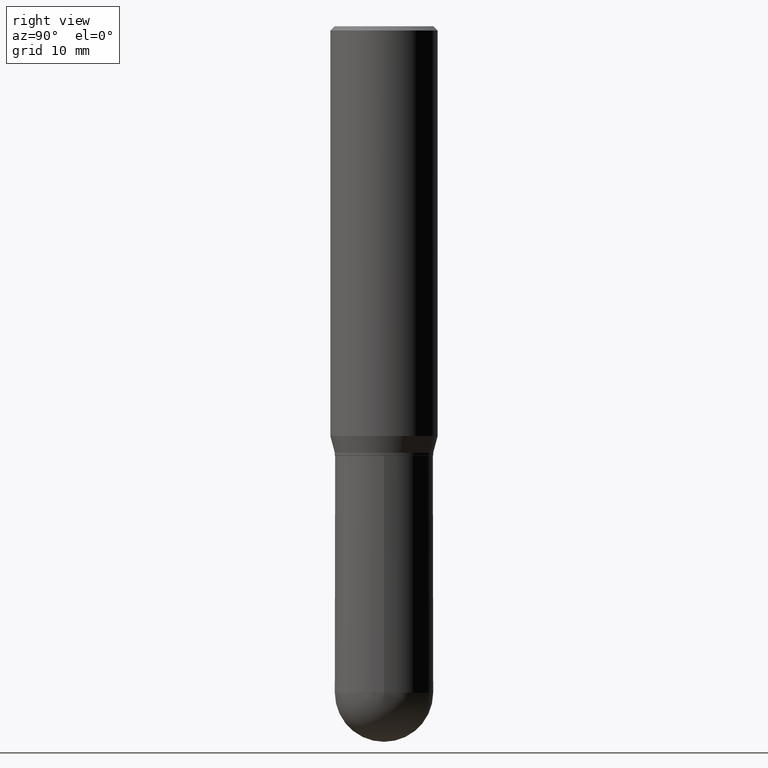
[diagram: clean part render]
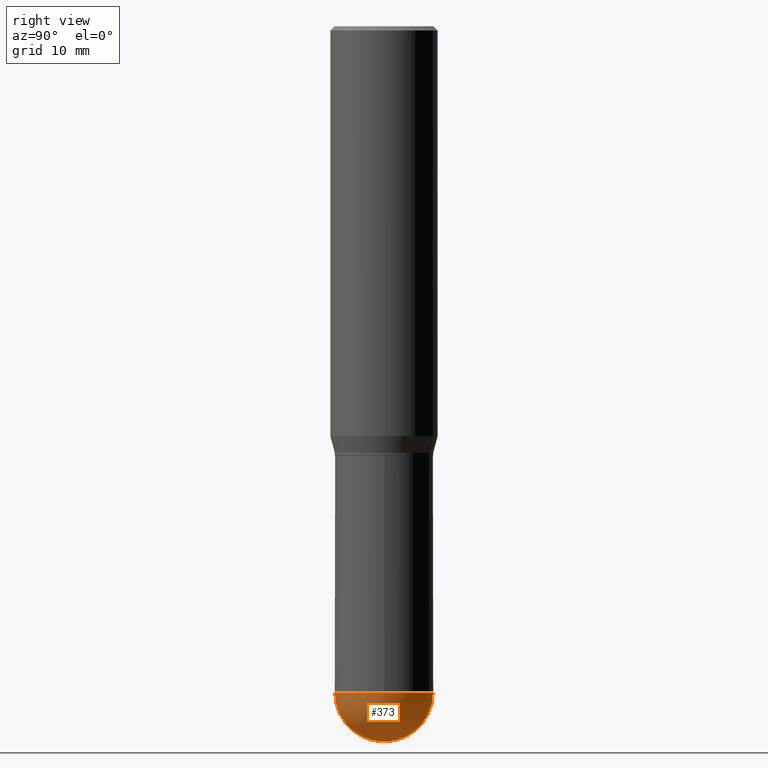
[diagram: same view with one face highlighted and labeled with its STEP entity id]
A machine part, right view. The second image highlights one B-rep face of the part: STEP entity #373.
In plain terms, the highlighted spherical surface has radius 4.3663 mm.
Its self-contained STEP definition (entity closure, byte-faithful):
#11 = DIRECTION ( 'NONE',  ( 6.982962677686266711E-15, 1.000000000000000000, 0.000000000000000000 ) ) ;
#19 = EDGE_CURVE ( 'NONE', #459, #285, #353, .T. ) ;
#27 = CARTESIAN_POINT ( 'NONE',  ( 5.693295927679617284E-29, -8.128517704960729139E-15, -2.328100000000000058 ) ) ;
#35 = CARTESIAN_POINT ( 'NONE',  ( 1.200371284294326039E-15, 0.1718999999999918094, -2.328100000000000946 ) ) ;
#42 = EDGE_LOOP ( 'NONE', ( #426, #477, #393, #272 ) ) ;
#58 = AXIS2_PLACEMENT_3D ( 'NONE', #233, #273, #11 ) ;
#61 = CARTESIAN_POINT ( 'NONE',  ( 0.1719000000000000250, -7.883241140906993293E-15, -2.328100000000000058 ) ) ;
#82 = VERTEX_POINT ( 'NONE', #35 ) ;
#100 = CIRCLE ( 'NONE', #58, 0.1718999999999999417 ) ;
#120 = DIRECTION ( 'NONE',  ( 6.982962677686265922E-15, 1.000000000000000000, -3.178415350394722463E-15 ) ) ;
#158 = CARTESIAN_POINT ( 'NONE',  ( 5.678595619168622984E-29, -8.149569383438070914E-15, -2.328100000000000058 ) ) ;
#160 = FACE_OUTER_BOUND ( 'NONE', #42, .T. ) ;
#165 = AXIS2_PLACEMENT_3D ( 'NONE', #176, #389, #120 ) ;
#172 = CARTESIAN_POINT ( 'NONE',  ( 5.693295927679617284E-29, -8.128517704960729139E-15, -2.328100000000000058 ) ) ;
#176 = CARTESIAN_POINT ( 'NONE',  ( 5.678595619168622984E-29, -8.149569383438070914E-15, -2.328100000000000058 ) ) ;
#181 = DIRECTION ( 'NONE',  ( -2.445468806185136597E-29, 3.491481338843145583E-15, 1.000000000000000000 ) ) ;
#200 = DIRECTION ( 'NONE',  ( -2.445468806185136597E-29, 3.491481338843145583E-15, 1.000000000000000000 ) ) ;
#223 = EDGE_CURVE ( 'NONE', #483, #82, #244, .T. ) ;
#233 = CARTESIAN_POINT ( 'NONE',  ( 5.678595619168622984E-29, -8.149569383438070914E-15, -2.328100000000000058 ) ) ;
#244 = CIRCLE ( 'NONE', #364, 0.1719000000000000250 ) ;
#272 = ORIENTED_EDGE ( 'NONE', *, *, #440, .F. ) ;
#273 = DIRECTION ( 'NONE',  ( 1.000000000000000000, -6.982962677686265922E-15, 4.883557194083112340E-29 ) ) ;
#275 = DIRECTION ( 'NONE',  ( -1.000000000000000000, 7.105427357601001070E-15, -4.926315508542082329E-29 ) ) ;
#285 = VERTEX_POINT ( 'NONE', #476 ) ;
#292 = AXIS2_PLACEMENT_3D ( 'NONE', #172, #200, #415 ) ;
#333 = DIRECTION ( 'NONE',  ( 1.000000000000000000, -6.982962677686271444E-15, 0.000000000000000000 ) ) ;
#348 = DIRECTION ( 'NONE',  ( -7.105427357601001070E-15, -1.000000000000000000, 0.000000000000000000 ) ) ;
#353 = CIRCLE ( 'NONE', #468, 0.1718999999999999417 ) ;
#364 = AXIS2_PLACEMENT_3D ( 'NONE', #27, #181, #333 ) ;
#365 = EDGE_CURVE ( 'NONE', #459, #82, #100, .T. ) ;
#373 = ADVANCED_FACE ( 'NONE', ( #160 ), #418, .T. ) ;
#389 = DIRECTION ( 'NONE',  ( -1.000000000000000000, 6.982962677686265922E-15, -4.883557194083112340E-29 ) ) ;
#392 = CIRCLE ( 'NONE', #292, 0.1719000000000000250 ) ;
#393 = ORIENTED_EDGE ( 'NONE', *, *, #223, .F. ) ;
#415 = DIRECTION ( 'NONE',  ( 1.000000000000000000, -6.982962677686271444E-15, 0.000000000000000000 ) ) ;
#418 = SPHERICAL_SURFACE ( 'NONE', #165, 0.1718999999999999417 ) ;
#426 = ORIENTED_EDGE ( 'NONE', *, *, #19, .F. ) ;
#440 = EDGE_CURVE ( 'NONE', #285, #483, #392, .T. ) ;
#459 = VERTEX_POINT ( 'NONE', #493 ) ;
#468 = AXIS2_PLACEMENT_3D ( 'NONE', #158, #275, #348 ) ;
#476 = CARTESIAN_POINT ( 'NONE',  ( -1.221422962771555008E-15, -0.1719000000000081296, -2.328099999999999614 ) ) ;
#477 = ORIENTED_EDGE ( 'NONE', *, *, #365, .T. ) ;
#483 = VERTEX_POINT ( 'NONE', #61 ) ;
#493 = CARTESIAN_POINT ( 'NONE',  ( 6.106321861207344902E-29, -8.739229186346536619E-15, -2.500000000000000000 ) ) ;